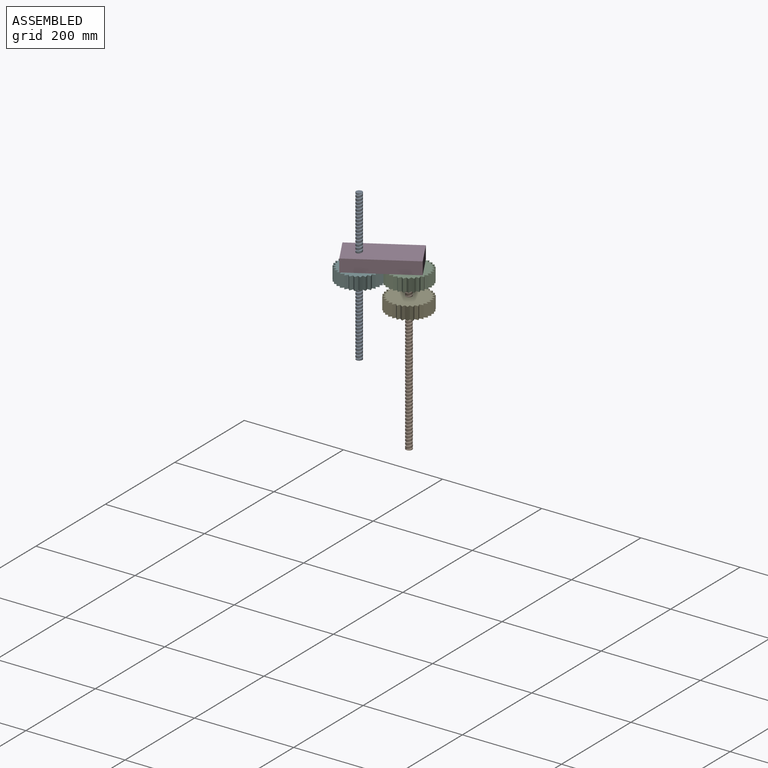
[diagram: assembled view]
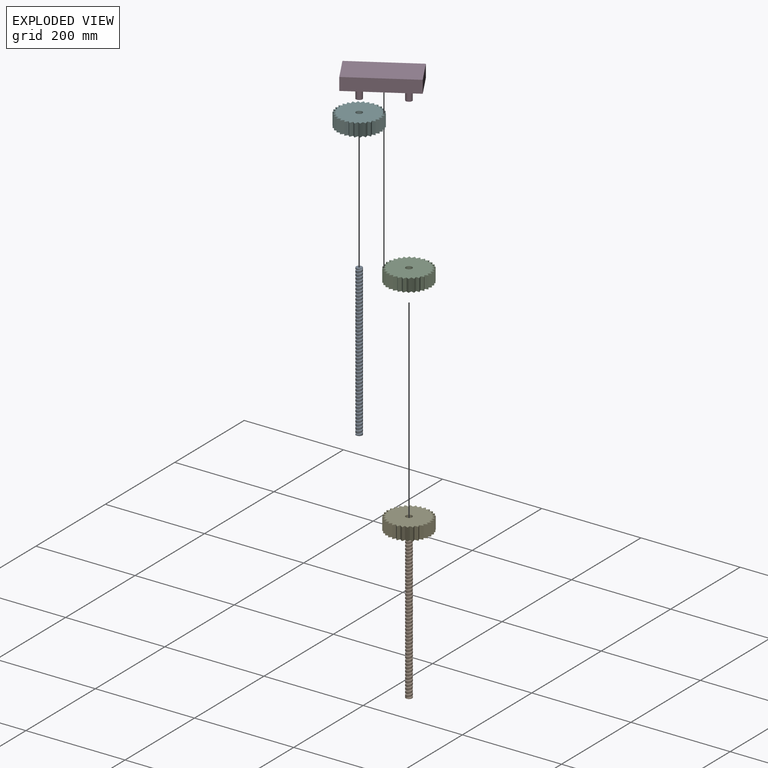
[diagram: exploded view]
GUIDED TOUR — MATED ASSEMBLY (Onshape document f4a128def54d17171b90b919, AutoMate assembly f4a128def54d17171b90b919_8a57f3a0029cc1b1698e0ac6_ca43c9d2655e7f98a0fb1d9c_default)

This assembly has 6 components, labeled P0..P5 below (a component is one placed occurrence of a part; the same part can appear more than once), held together by 6 mates. A mate is a constraint between two components; its type names the relative motion it leaves free:
  CYLINDRICAL — leaves both rotation about and translation along the listed axis free,
  FASTENED — locks the two components together rigidly (no relative motion),
  PLANAR — leaves sliding in the plane through the listed point (normal = the listed direction) and rotation about that normal free,
  REVOLUTE — leaves rotation about the listed axis free (a hinge).
Axis/direction vectors are unit vectors and 'through' points are millimeter coordinates, both in the assembly's world frame.

MATES
  1. FASTENED "Fastened 1": P1 <-> P2, direction (0.000, 0.000, 1.000) through (53.49, 55.65, -318.86) mm
  2. PLANAR "Planar 1": P2 <-> P5, direction (0.000, 0.000, 1.000) through (53.49, 55.65, -293.46) mm
  3. CYLINDRICAL "Cylindrical 2": P4 <-> P1, axis (0.000, 0.000, -1.000) through (53.49, 55.65, -369.83) mm
  4. REVOLUTE "Revolute 2": P5 <-> P3, axis (0.000, 0.000, -1.000) through (-17.76, 13.96, -318.86) mm
  5. CYLINDRICAL "Cylindrical 1": P0 <-> P5, axis (0.000, 0.000, 1.000) through (-17.76, 13.96, -158.28) mm
  6. REVOLUTE "Revolute 1": P2 <-> P3, axis (0.000, 0.000, -1.000) through (53.49, 55.65, -318.86) mm

ASSEMBLY ORDER
  1. P2 — the base component [order heuristic]
  2. P1 [order heuristic]
  3. P3 [order heuristic]
  4. P5 [order heuristic]
  5. P0 [order heuristic]
  6. P4 [order heuristic]
Order-tag legend:
  [order heuristic] — this assembly is geometrically interlocked (no collision-free removal order exists), so components are listed in mate-graph order; insertion feasibility is not verified.

Of the 6 components, 1 carries the full construction recipe — the FeatureScript program that regenerates the part's solid from scratch; the rest are supplied as boundary geometry only.
Each toured component is shown spotlighted twice — in the assembled view, then in the exploded view, where a leader line traces a displaced component back to its assembled socket (saturated green if recipe-attached, orange if geometry-only; every other component desaturated gray) — followed by its recipe or geometry summary and the mates that hold it.
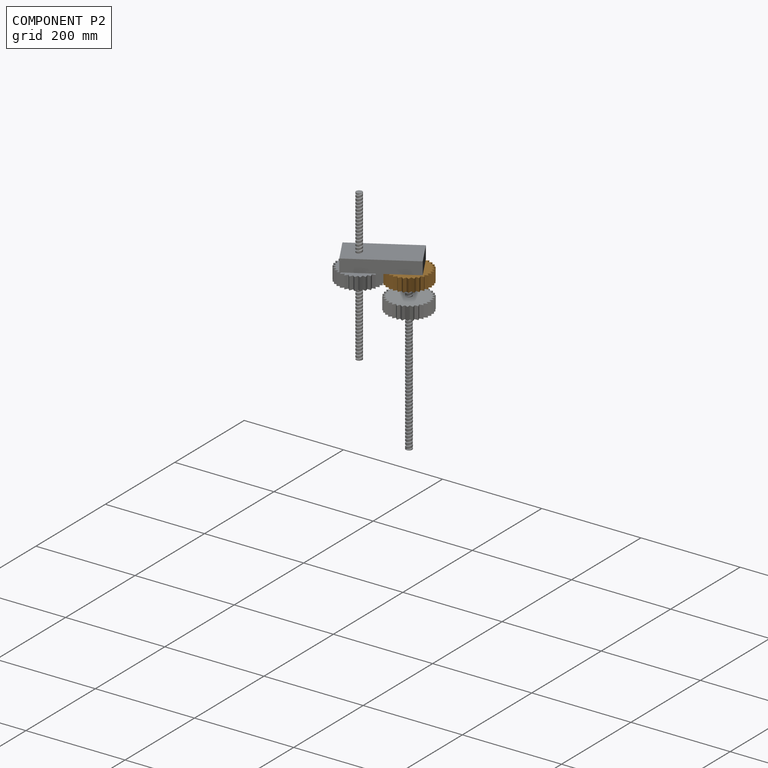
[diagram: component P2 — assembled]
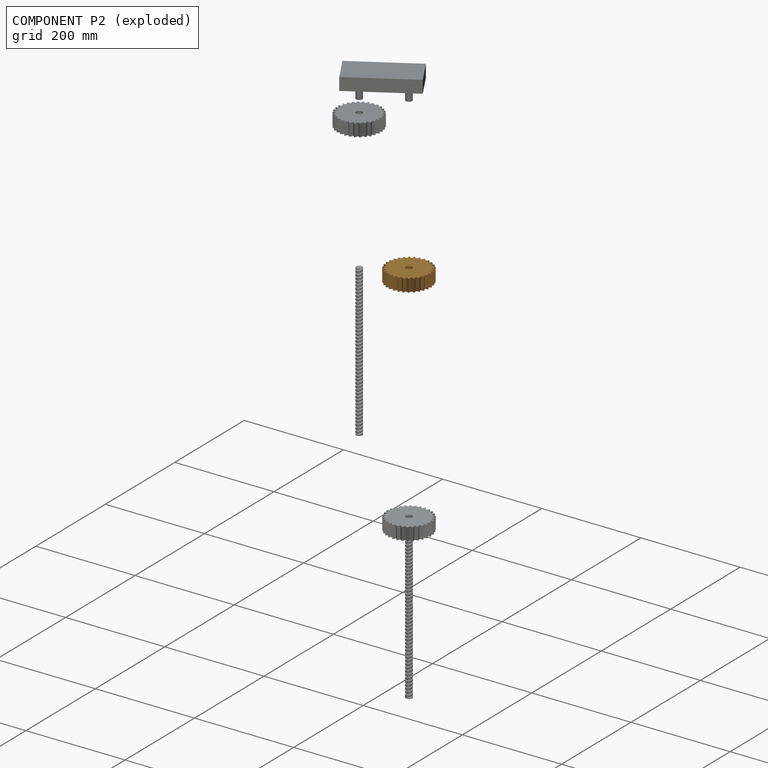
[diagram: component P2 — exploded]
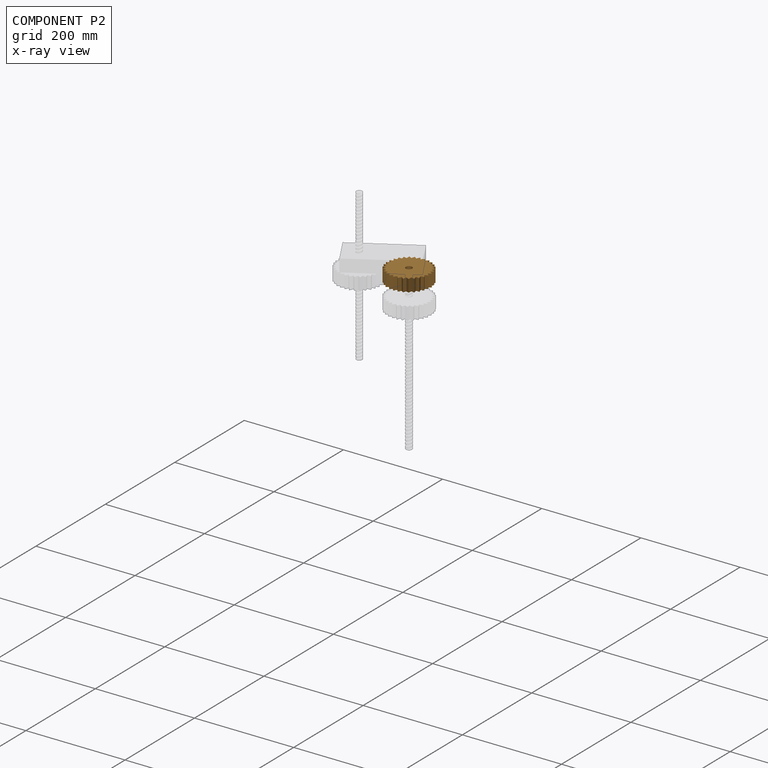
[diagram: component P2 — x-ray view]
COMPONENT P2 — geometry summary (no construction recipe available for this part):
  bounding box: 88.4 x 88.1 x 25.4 mm
  B-rep topology: 1 solid, 63 faces, 366 edges
  volume: 131627 mm^3 (67% of its bounding box)
  symmetry: 6-fold rotationally symmetric about the z axis; mirror-symmetric across its z mid-plane
Held by: FASTENED mate "Fastened 1" to P1; PLANAR mate "Planar 1" to P5; REVOLUTE mate "Revolute 1" to P3.
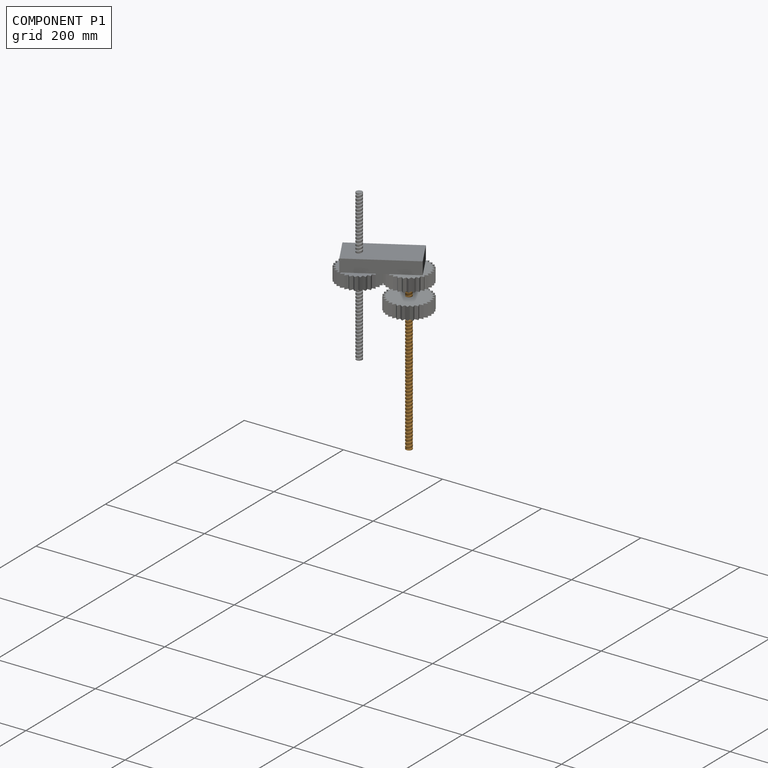
[diagram: component P1 — assembled]
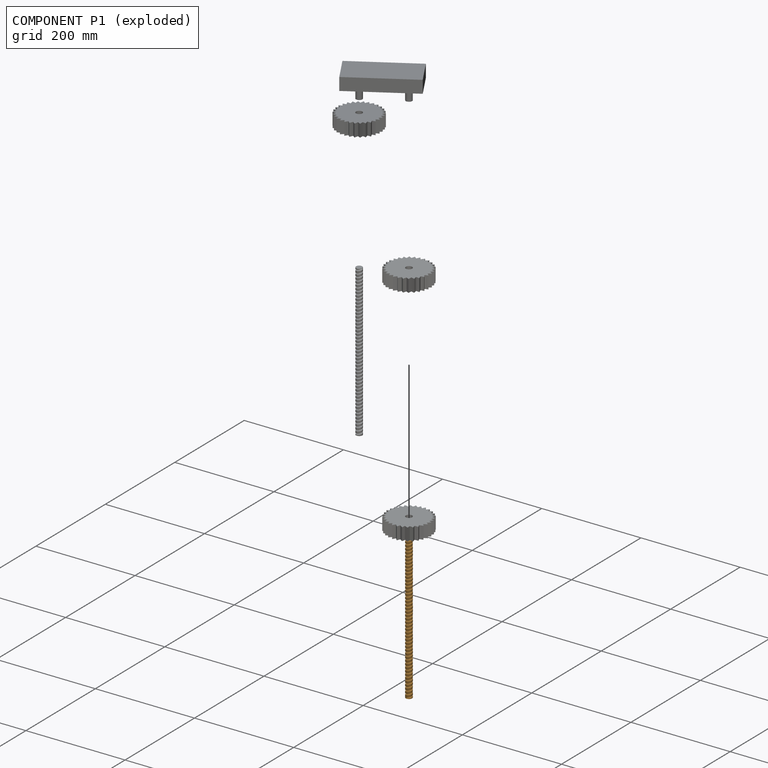
[diagram: component P1 — exploded]
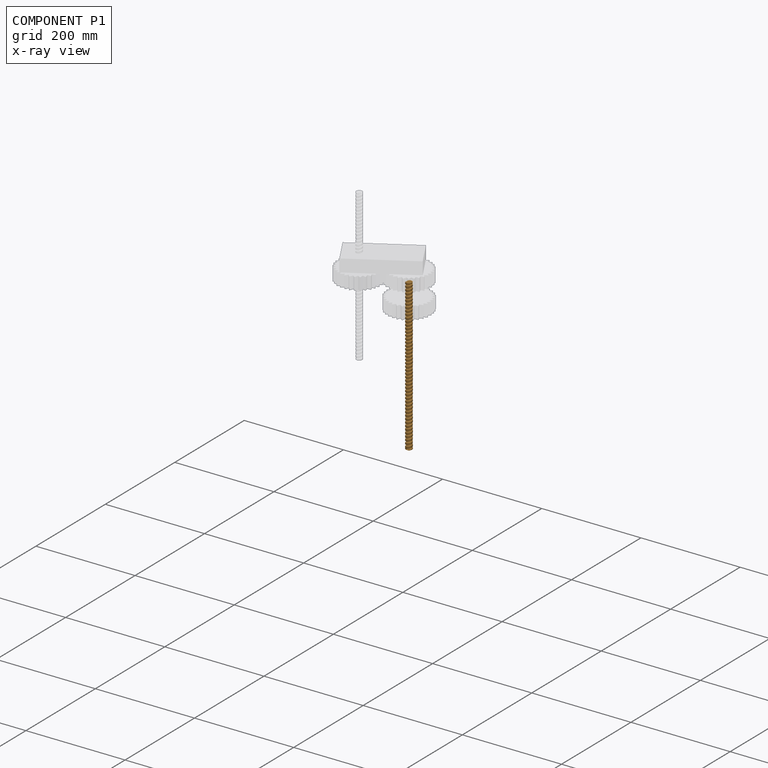
[diagram: component P1 — x-ray view]
COMPONENT P1 — geometry summary (no construction recipe available for this part):
  bounding box: 307.0 x 15.4 x 13.4 mm
  B-rep topology: 1 solid, 6 faces, 20 edges
  volume: 43217 mm^3 (68% of its bounding box)
  symmetry: revolution-symmetric about the y axis through its bounding-box center; 2-fold rotationally symmetric about the z axis
Held by: FASTENED mate "Fastened 1" to P2; CYLINDRICAL mate "Cylindrical 2" to P4.
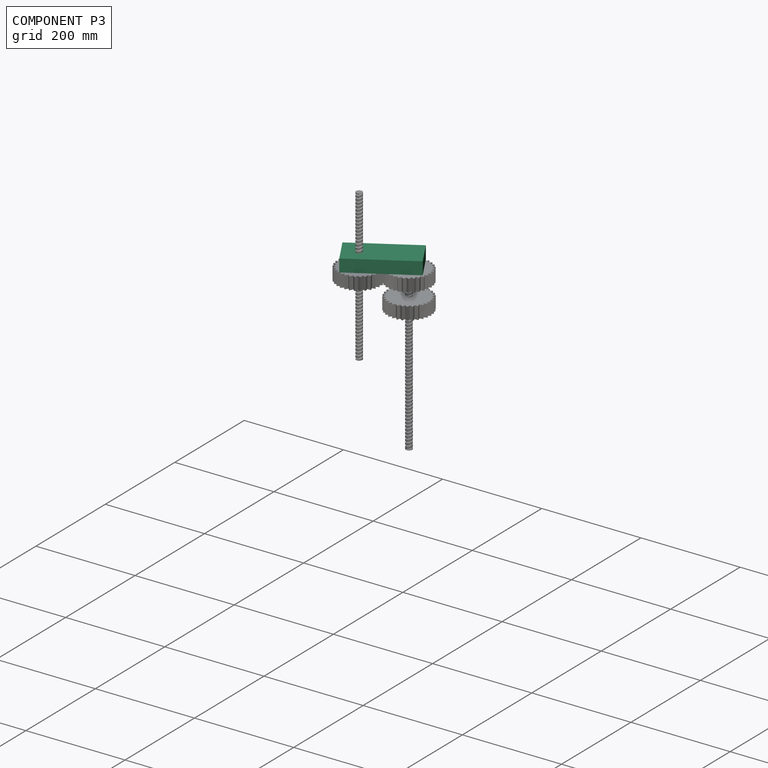
[diagram: component P3 — assembled]
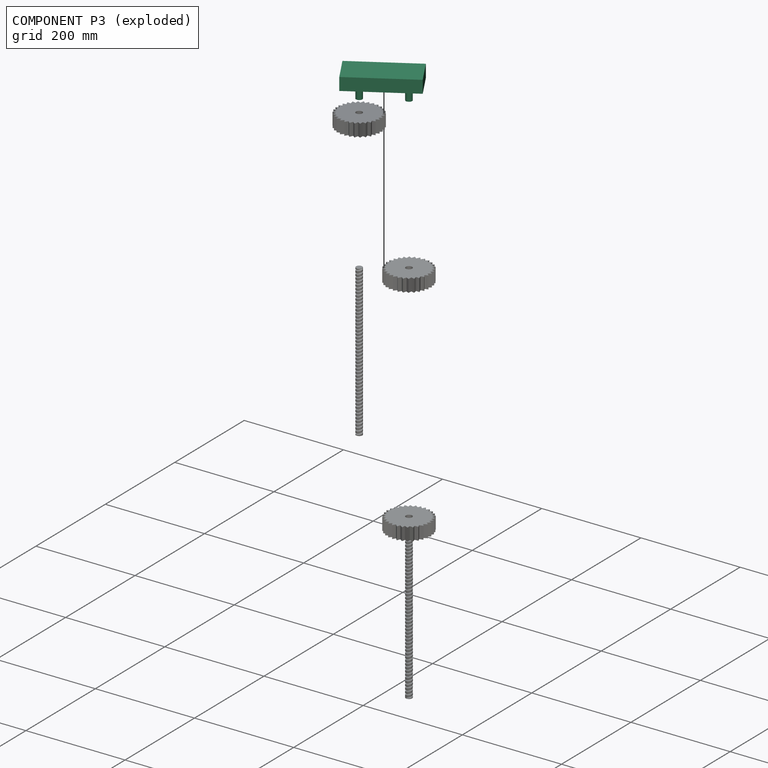
[diagram: component P3 — exploded]
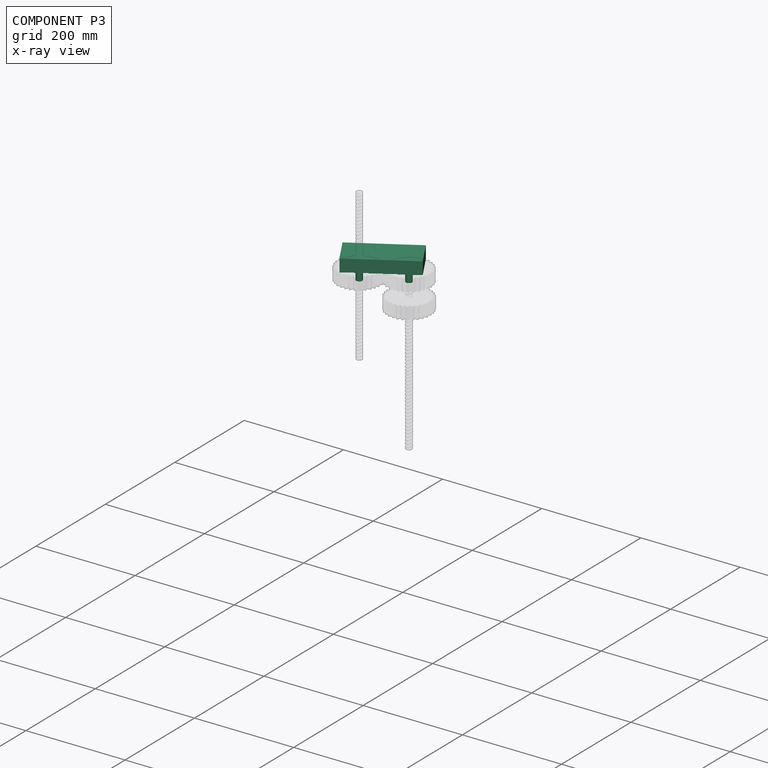
[diagram: component P3 — x-ray view]
COMPONENT P3 — recipe-attached (CADFS 00435067, mesh-verified: the recipe's output STEP matches this component's geometry to below the mesh-comparison resolution (tessellation chordal tolerance ~0.24 mm)).
Held by: REVOLUTE mate "Revolute 2" to P5; REVOLUTE mate "Revolute 1" to P2.
Construction recipe (FeatureScript — the CAD program that rebuilds this solid; sketch coordinates are in the units given by the * unit suffixes, e.g. mm):

FeatureScript 1511;
import(path : "onshape/std/geometry.fs", version : "1511.0");
import(path : "onshape/std/common.fs", version : "1511.0");
const mm = millimeter;
const VERTEX = EntityType.VERTEX;
const EDGE = EntityType.EDGE;
const FACE = EntityType.FACE;
const BODY = EntityType.BODY;
function v(x, y){return vector(x, y);}
function OD(order){return orderDisambiguation(order);}
function OSD(set){return originalSetDisambiguation(set);}
function TD(topology){return topologyDisambiguation(topology);}
function TDD(query){return trueDependencyDisambiguation(query);}
function sQuery(a, b, c) {return sketchEntityQuery(a, b, c);}

annotation { "Feature Type Name" : "Feature", "Feature Type Description" : "" }
export const myFeature = defineFeature(function(context is Context, id is Id, definition is map)
    precondition{}
    {
        {
            var Q0;
            Q0=qCreatedBy(makeId("Top.planeOp"),FACE);
            var sketch = newSketch(context, id + "F0", { "sketchPlane" : qUnion([Q0])});
            skCircle(sketch, "E0", {"center": v(-22.99, 0) * mm, "radius": 6.35 * mm});
            skCircle(sketch, "E1", {"center": v(59.56, 0) * mm, "radius": 6.35 * mm});
            skLineSegment(sketch, "E2.bottom", {"start": v(-48.07, 35.56) * mm, "end": v(90.24, 35.56) * mm});
            skLineSegment(sketch, "E2.top", {"start": v(-48.07, -27.63) * mm, "end": v(90.24, -27.63) * mm});
            skLineSegment(sketch, "E2.left", {"start": v(-48.07, 35.56) * mm, "end": v(-48.07, -27.63) * mm});
            skLineSegment(sketch, "E2.right", {"start": v(90.24, 35.56) * mm, "end": v(90.24, -27.63) * mm});
            skSolve(sketch);
        }
        {
            var Q0;
            Q0=makeQuery(id+"F0.imprint","IMPRINT",FACE,{"disambiguationData":[TD([[makeQuery(id+"F0.imprint","IMPRINT",EDGE,{"derivedFrom":sQuery(id+"F0.wireOp",EDGE,"E0")}),1.0]])]});
            var Q1;
            Q1=makeQuery(id+"F0.imprint","IMPRINT",FACE,{"disambiguationData":[TD([[makeQuery(id+"F0.imprint","IMPRINT",EDGE,{"derivedFrom":sQuery(id+"F0.wireOp",EDGE,"E1")}),1.0]])]});
            extrude(context, id + "F1", {"entities" : qUnion([Q0, Q1]), "depth" : 50.8 * mm});
        }
        {
            var Q0;
            Q0=makeQuery(id+"F0.imprint","IMPRINT",FACE,{"disambiguationData":[TD([[makeQuery(id+"F0.imprint","IMPRINT",EDGE,{"derivedFrom":sQuery(id+"F0.wireOp",EDGE,"E0")}),-1.0]])]});
            extrude(context, id + "F2", {"entities" : qUnion([Q0]), "operationType" : NewBodyOperationType.ADD, "depth" : 25.4 * mm});
        }
    });
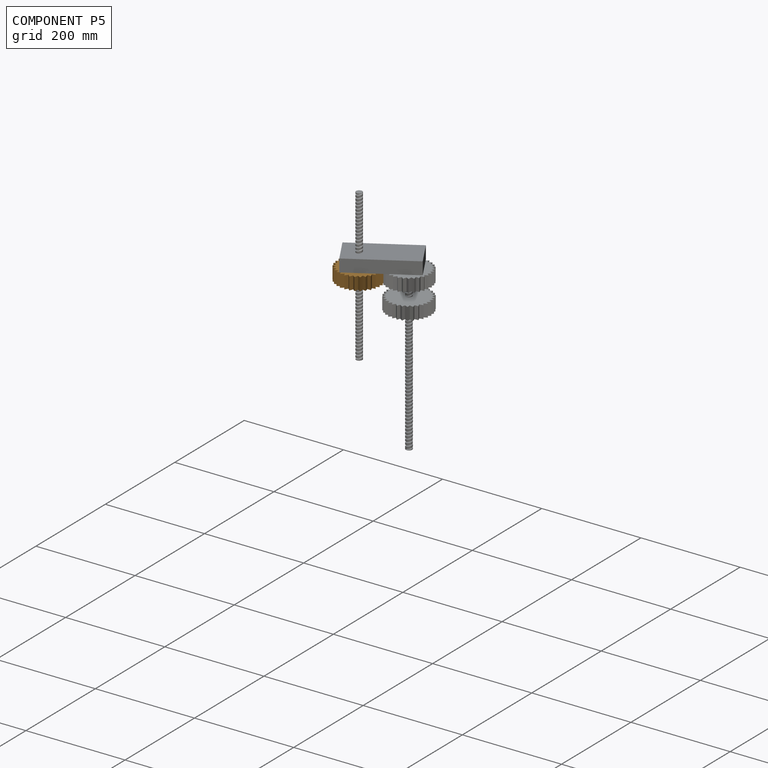
[diagram: component P5 — assembled]
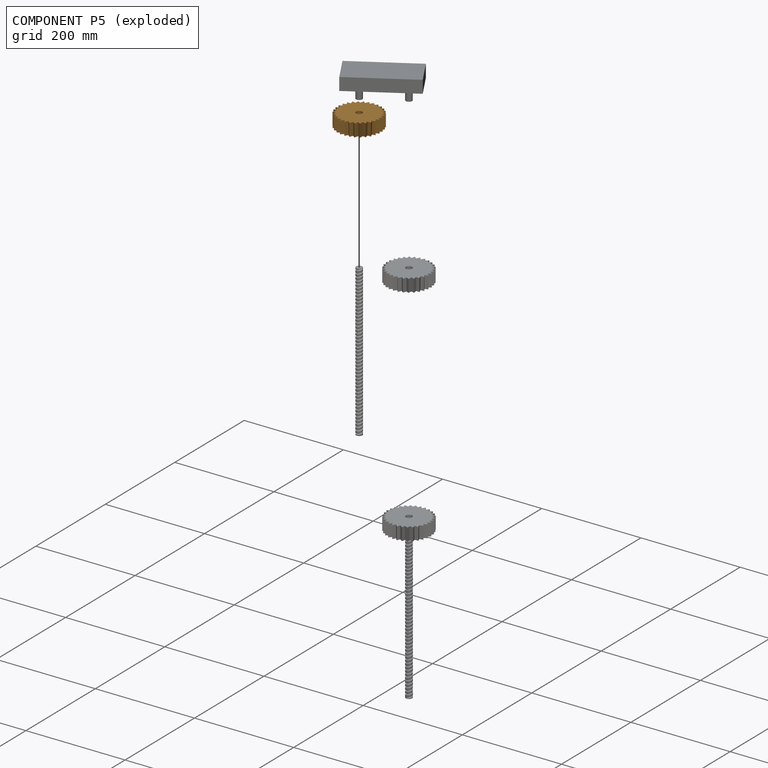
[diagram: component P5 — exploded]
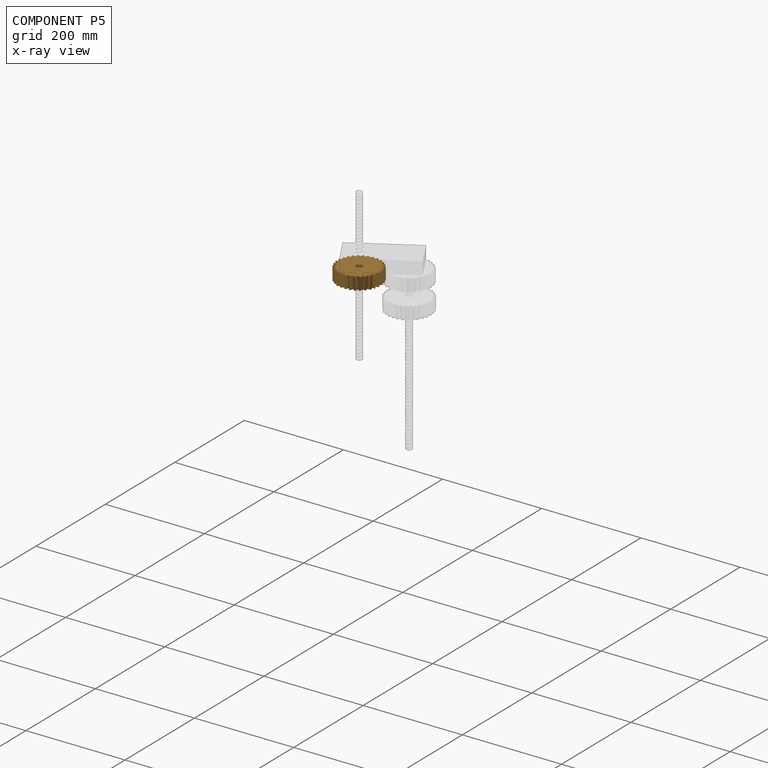
[diagram: component P5 — x-ray view]
COMPONENT P5 — geometry summary (no construction recipe available for this part):
  bounding box: 88.4 x 88.1 x 25.4 mm
  B-rep topology: 1 solid, 63 faces, 366 edges
  volume: 131627 mm^3 (67% of its bounding box)
  symmetry: 6-fold rotationally symmetric about the z axis; mirror-symmetric across its z mid-plane
Held by: PLANAR mate "Planar 1" to P2; REVOLUTE mate "Revolute 2" to P3; CYLINDRICAL mate "Cylindrical 1" to P0.
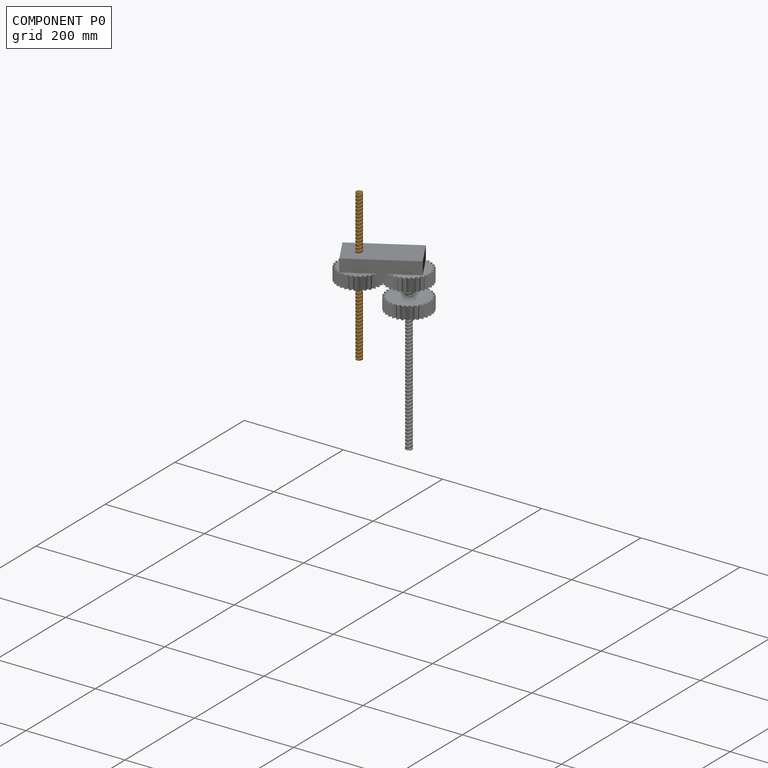
[diagram: component P0 — assembled]
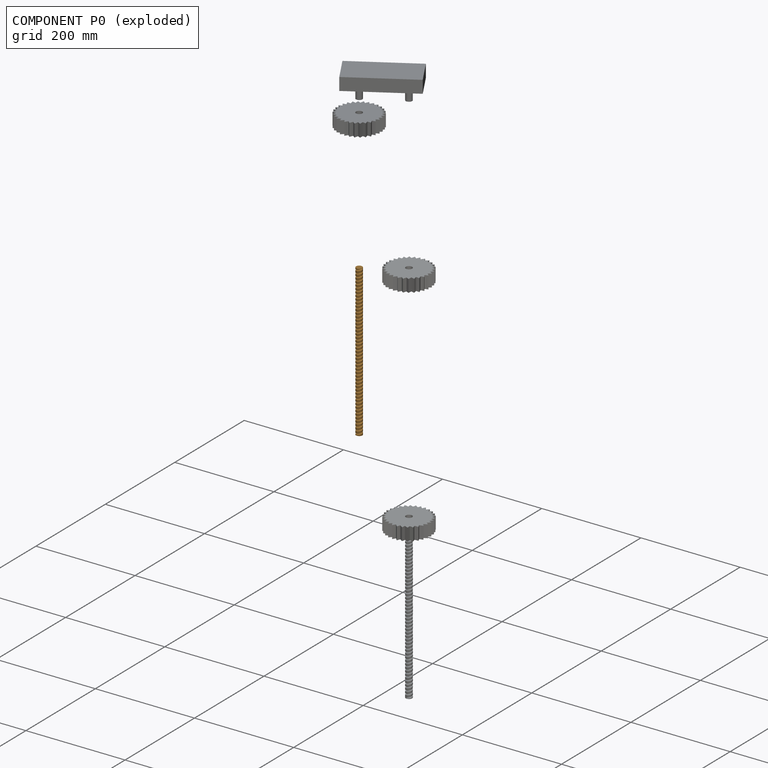
[diagram: component P0 — exploded]
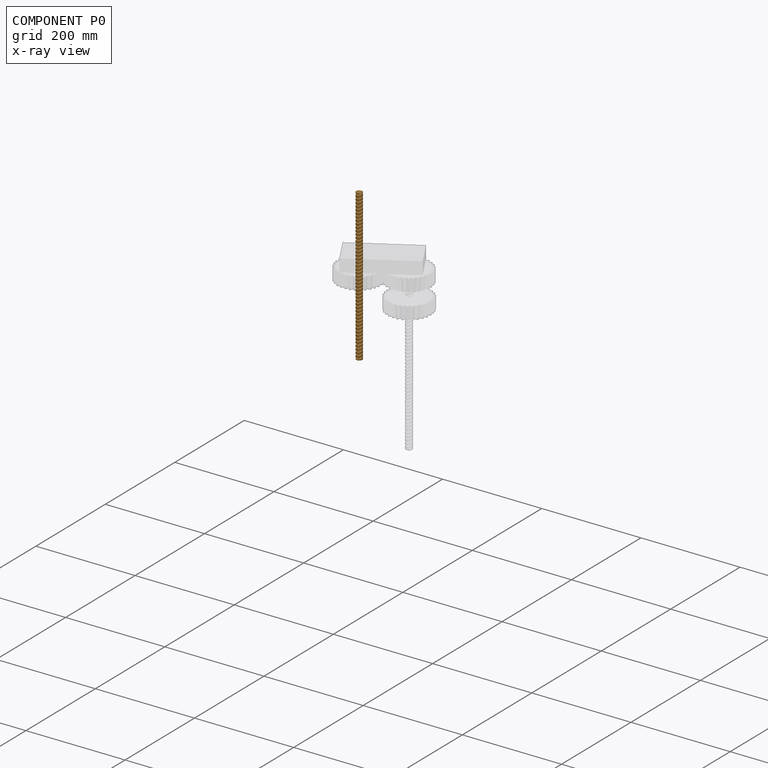
[diagram: component P0 — x-ray view]
COMPONENT P0 — geometry summary (no construction recipe available for this part):
  bounding box: 307.0 x 15.4 x 13.4 mm
  B-rep topology: 1 solid, 6 faces, 20 edges
  volume: 43217 mm^3 (68% of its bounding box)
  symmetry: revolution-symmetric about the y axis through its bounding-box center; 2-fold rotationally symmetric about the z axis
Held by: CYLINDRICAL mate "Cylindrical 1" to P5.
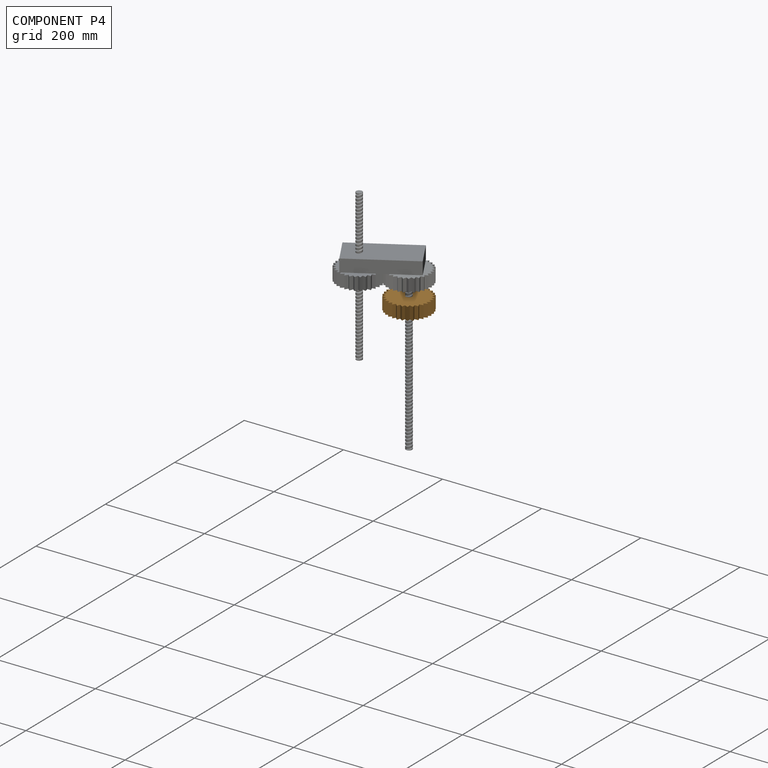
[diagram: component P4 — assembled]
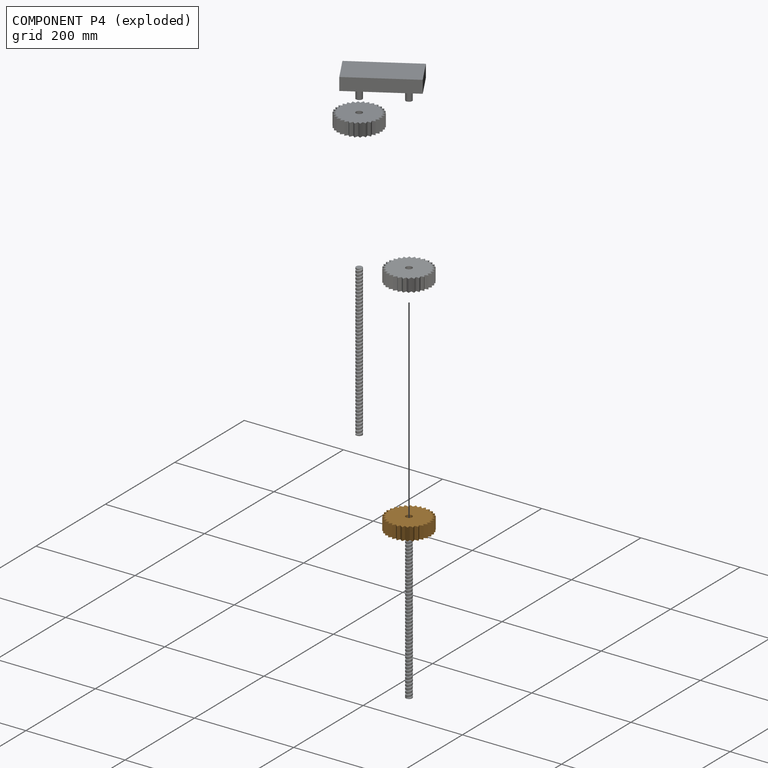
[diagram: component P4 — exploded]
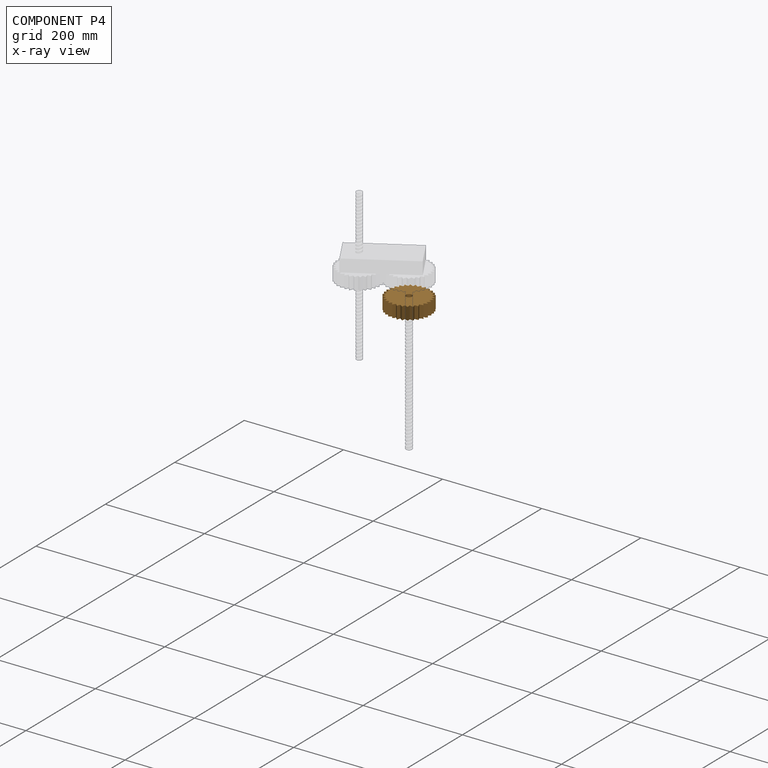
[diagram: component P4 — x-ray view]
COMPONENT P4 — geometry summary (no construction recipe available for this part):
  bounding box: 88.4 x 88.1 x 25.4 mm
  B-rep topology: 1 solid, 63 faces, 366 edges
  volume: 131627 mm^3 (67% of its bounding box)
  symmetry: 6-fold rotationally symmetric about the z axis; mirror-symmetric across its z mid-plane
Held by: CYLINDRICAL mate "Cylindrical 2" to P1.
PROVENANCE & LICENSES
Assembly (occurrences, transforms, mates, per-part STEP geometry): AutoMate dataset, Zenodo record 7776208, CC0.
Construction recipes: CADFS (HuggingFace VladPyatov/CADFS, CC-BY-4.0, layered over the ABC dataset), FeatureScript reconstruction programs keyed by ABC model id.
Join: ABC meta listings map ABC model id -> Onshape documentId; within a shared document, parts are matched by geometric signature (bounding-box dims + volume at 0.1% relative tolerance, exact B-rep face/solid counts).
Verification: 1 of this assembly's 6 components carries a recipe attachment, and every attachment is mesh-verified: the CADFS STEP and the AutoMate member STEP were compared as meshes in their shared local frame (symmetric sampled-point-to-mesh distance); worst across the 1 attachment: below the mesh-comparison resolution (tessellation chordal tolerance ~0.24 mm) on a 160 mm part.
Renders: orthographic iso camera (az 35 / el 25); the floor grid conveys scale (grid pitch printed in each image; no ruler). In the exploded view each component is displaced by its stored offset vector: the offsets alone carry the explosion direction (mate normal/axis signs are not orientation cues and do not encode it), and separation distances are assigned per mate-chain, not proportionally to assembly-order depth.
